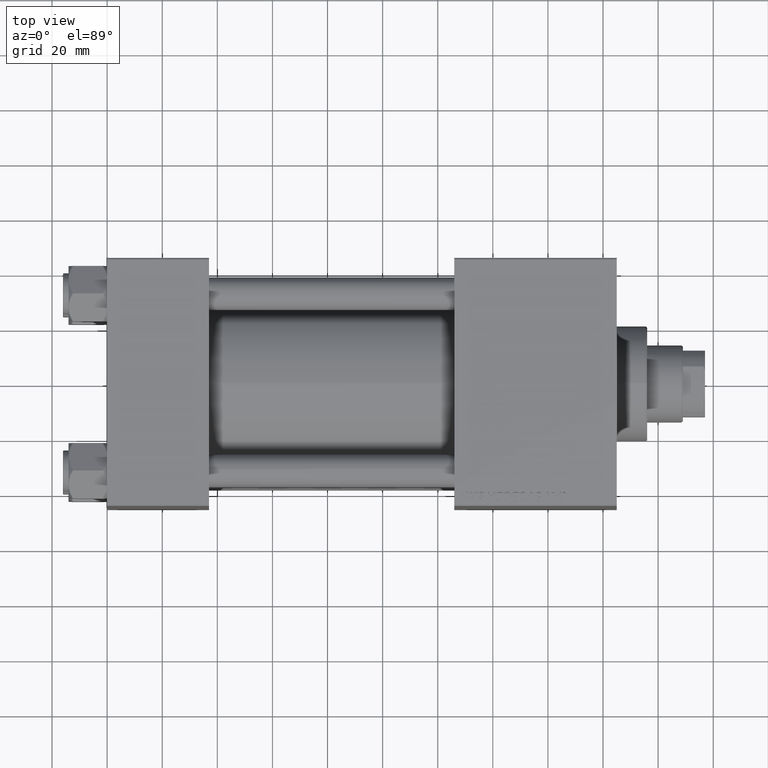
[diagram: clean part render]
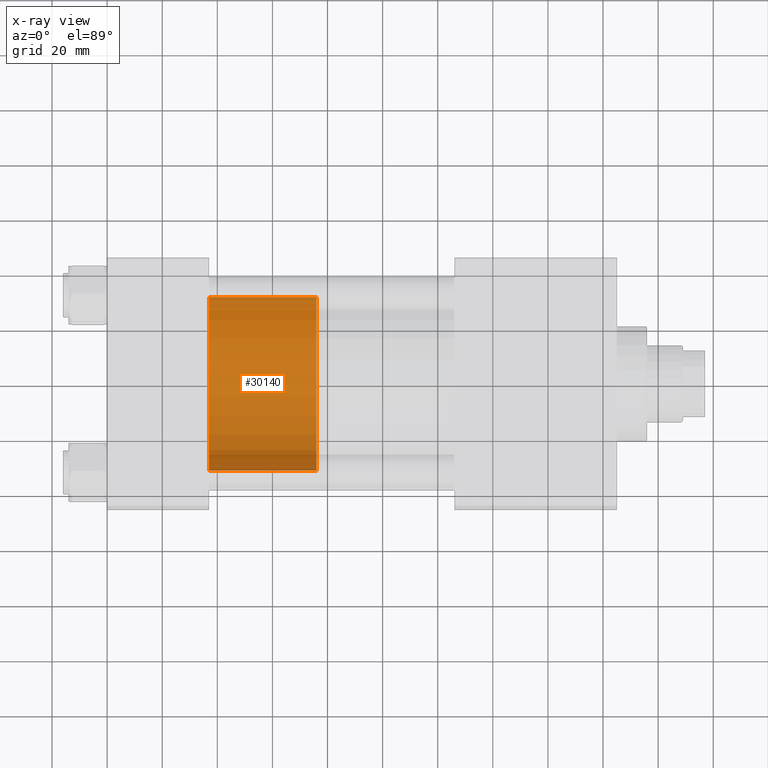
[diagram: x-ray — body ghosted, one internal face saturated and labeled with its STEP entity id]
A machine part, top view, then the same camera in x-ray: the body is ghosted and one INTERNAL B-rep face — a face not visible from any outside direction — is saturated and labeled: STEP entity #30140.
In plain terms, the highlighted cylindrical surface (partial cylindrical patch) has radius 31.5 mm, axis along (-1, 0, 0).
Its self-contained STEP definition (entity closure, byte-faithful):
#1701 = DIRECTION ( 'NONE',  ( 0.000000000000000000, 0.000000000000000000, 1.000000000000000000 ) ) ;
#3823 = VERTEX_POINT ( 'NONE', #48768 ) ;
#3940 = DIRECTION ( 'NONE',  ( -1.000000000000000000, 0.000000000000000000, 0.000000000000000000 ) ) ;
#6198 = VECTOR ( 'NONE', #29013, 1000.000000000000000 ) ;
#6377 = DIRECTION ( 'NONE',  ( 1.000000000000000000, 0.000000000000000000, 0.000000000000000000 ) ) ;
#6792 = VERTEX_POINT ( 'NONE', #49240 ) ;
#7449 = VECTOR ( 'NONE', #40692, 1000.000000000000000 ) ;
#7500 = CARTESIAN_POINT ( 'NONE',  ( 0.000000000000000000, 0.000000000000000000, 39.00000000000000000 ) ) ;
#7712 = AXIS2_PLACEMENT_3D ( 'NONE', #40442, #29278, #6377 ) ;
#10169 = LINE ( 'NONE', #25709, #6198 ) ;
#20766 = DIRECTION ( 'NONE',  ( 1.000000000000000000, 0.000000000000000000, 0.000000000000000000 ) ) ;
#21142 = LINE ( 'NONE', #47556, #7449 ) ;
#21810 = EDGE_CURVE ( 'NONE', #6792, #29576, #32870, .T. ) ;
#22883 = ORIENTED_EDGE ( 'NONE', *, *, #26033, .F. ) ;
#23271 = FACE_OUTER_BOUND ( 'NONE', #29548, .T. ) ;
#24577 = ORIENTED_EDGE ( 'NONE', *, *, #21810, .F. ) ;
#25103 = CARTESIAN_POINT ( 'NONE',  ( 0.000000000000000000, 0.000000000000000000, 0.000000000000000000 ) ) ;
#25709 = CARTESIAN_POINT ( 'NONE',  ( -31.50000000000000000, 0.000000000000000000, 39.00000000000000000 ) ) ;
#26033 = EDGE_CURVE ( 'NONE', #29576, #3823, #10169, .T. ) ;
#29013 = DIRECTION ( 'NONE',  ( -0.000000000000000000, -0.000000000000000000, -1.000000000000000000 ) ) ;
#29278 = DIRECTION ( 'NONE',  ( 0.000000000000000000, 0.000000000000000000, 1.000000000000000000 ) ) ;
#29548 = EDGE_LOOP ( 'NONE', ( #24577, #34352, #34747, #22883 ) ) ;
#29576 = VERTEX_POINT ( 'NONE', #47307 ) ;
#30140 = ADVANCED_FACE ( 'NONE', ( #23271 ), #46617, .T. ) ;
#32870 = CIRCLE ( 'NONE', #7712, 31.50000000000000000 ) ;
#33105 = AXIS2_PLACEMENT_3D ( 'NONE', #25103, #1701, #20766 ) ;
#34340 = EDGE_CURVE ( 'NONE', #41366, #3823, #41349, .T. ) ;
#34352 = ORIENTED_EDGE ( 'NONE', *, *, #42854, .T. ) ;
#34747 = ORIENTED_EDGE ( 'NONE', *, *, #34340, .T. ) ;
#40442 = CARTESIAN_POINT ( 'NONE',  ( 0.000000000000000000, 0.000000000000000000, 39.00000000000000000 ) ) ;
#40692 = DIRECTION ( 'NONE',  ( -0.000000000000000000, -0.000000000000000000, -1.000000000000000000 ) ) ;
#41303 = CARTESIAN_POINT ( 'NONE',  ( 31.50000000000000000, 3.857637417314162689E-15, 0.000000000000000000 ) ) ;
#41349 = CIRCLE ( 'NONE', #33105, 31.50000000000000000 ) ;
#41366 = VERTEX_POINT ( 'NONE', #41303 ) ;
#42854 = EDGE_CURVE ( 'NONE', #6792, #41366, #21142, .T. ) ;
#43060 = DIRECTION ( 'NONE',  ( -0.000000000000000000, -0.000000000000000000, -1.000000000000000000 ) ) ;
#46617 = CYLINDRICAL_SURFACE ( 'NONE', #48521, 31.50000000000000000 ) ;
#47307 = CARTESIAN_POINT ( 'NONE',  ( -31.50000000000000000, 0.000000000000000000, 39.00000000000000000 ) ) ;
#47556 = CARTESIAN_POINT ( 'NONE',  ( 31.50000000000000000, 3.857637417314162689E-15, 39.00000000000000000 ) ) ;
#48521 = AXIS2_PLACEMENT_3D ( 'NONE', #7500, #43060, #3940 ) ;
#48768 = CARTESIAN_POINT ( 'NONE',  ( -31.50000000000000000, 0.000000000000000000, 0.000000000000000000 ) ) ;
#49240 = CARTESIAN_POINT ( 'NONE',  ( 31.50000000000000000, 3.857637417314162689E-15, 39.00000000000000000 ) ) ;